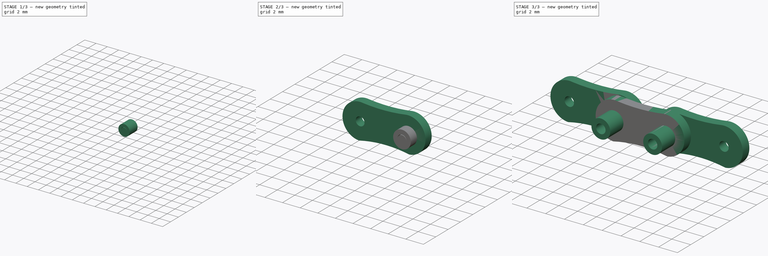
[diagram: build sequence overview — one tinted view per stage of 3, left to right]
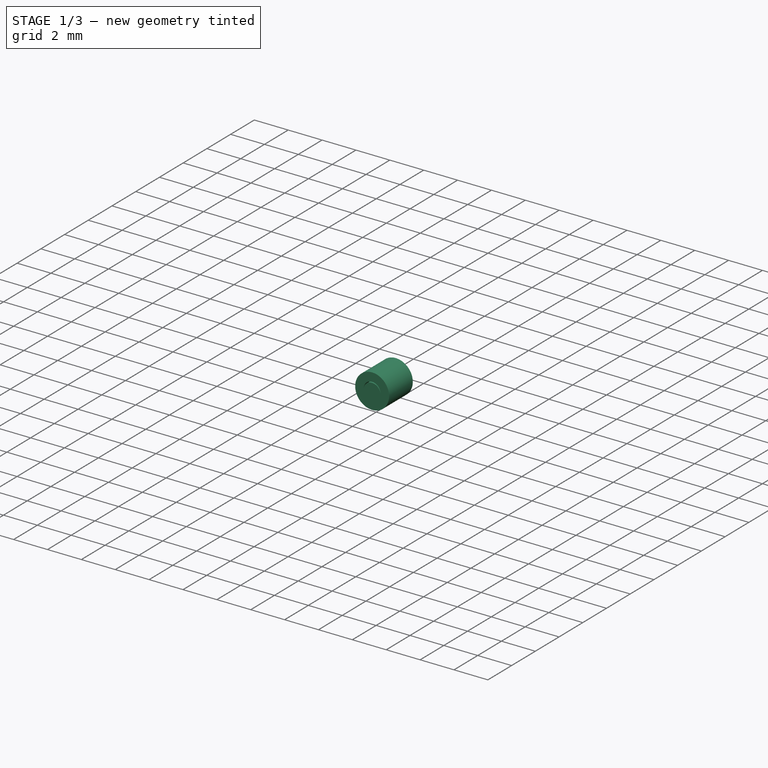
[diagram: stage 1 of 3 — iso view after this stage's code; geometry added in this stage tinted green]
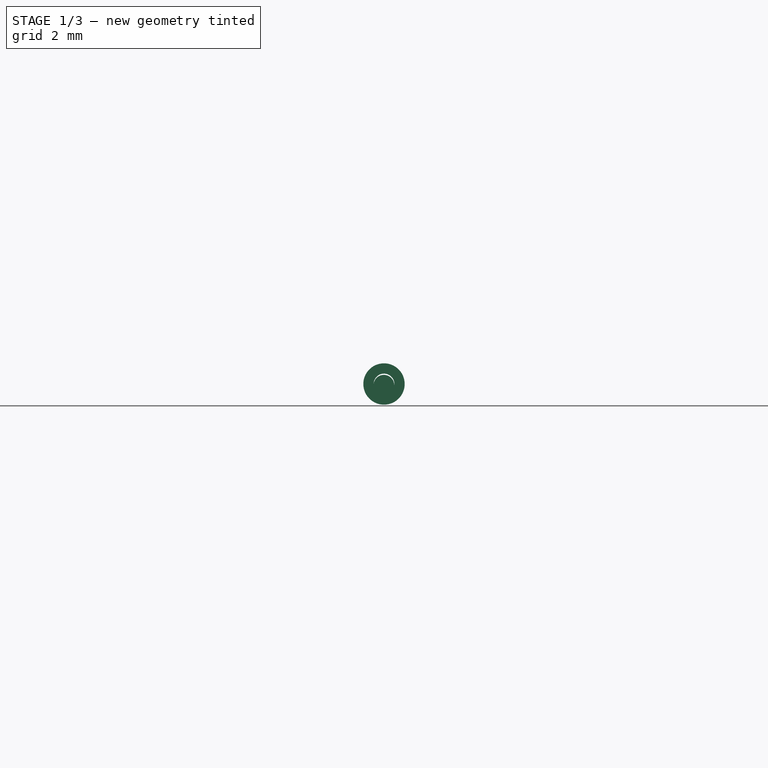
[diagram: stage 1 of 3 — front view after this stage's code; geometry added in this stage tinted green]
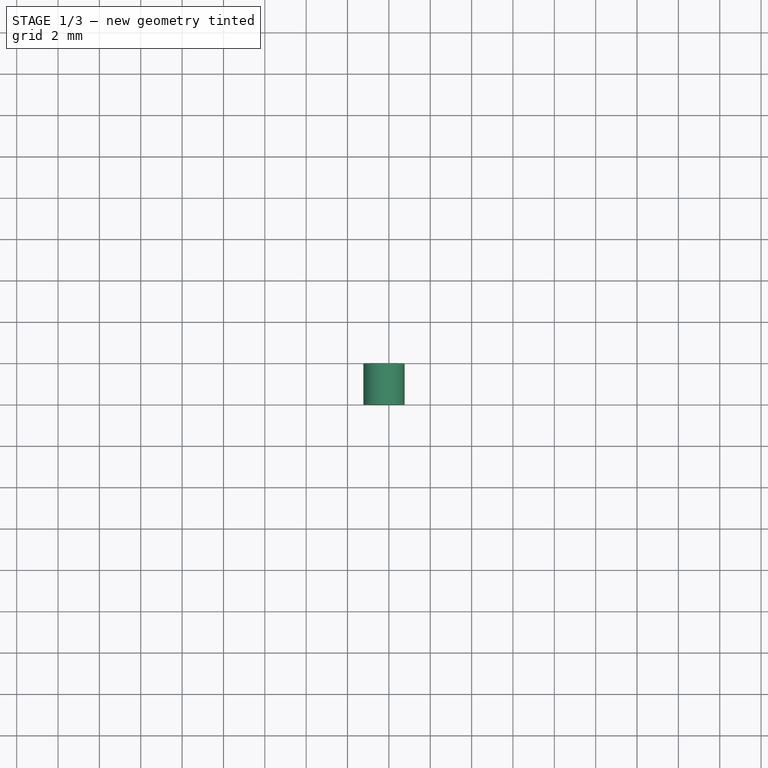
[diagram: stage 1 of 3 — top view after this stage's code; geometry added in this stage tinted green]
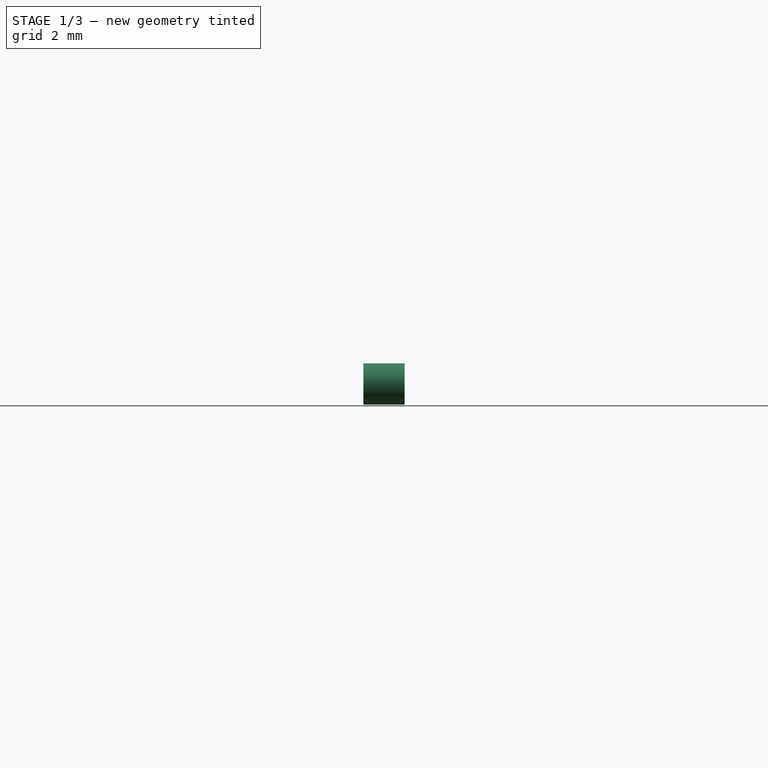
[diagram: stage 1 of 3 — right view after this stage's code; geometry added in this stage tinted green]
FCSTD DOCUMENT  (FreeCAD 0.21R33771 (Git))
Label: Sprocket Chain Design Fail
License: All rights reserved
LicenseURL: http://en.wikipedia.org/wiki/All_rights_reserved
objects: Sketcher::SketchObject×9, PartDesign::Body×8, PartDesign::Pad×7, PartDesign::Boolean×1, App::DocumentObjectGroup×1
note: 32 computed .brp shape members not serialized (recipe doc carries the construction recipe); baked Part::Feature solids carry a one-line shape summary decoded from their .brp

FEATURE [PartDesign::Body] Body003
  Group = -> [Sketch005,Pad003]
  Origin = -> Origin003
  Placement = pos=(0.5,-1,0) rot=(0,0,1;0rad)
  Tip = -> Pad003
FEATURE [Sketcher::SketchObject] Sketch006
  FullyConstrained = false
  MapMode = 5
  Placement = pos=(0,0,0) rot=(1,0,0;1.5708rad)
  Support = -> [XZ_Plane004]
  sketch-geometry (1):
    g0: Circle CenterX=25.7577 CenterY=-14.9411 CenterZ=0 NormalX=0 NormalY=0 NormalZ=1 AngleXU=0 Radius=0.5
  constraints (1):
    c: Diameter(g0) = 1
FEATURE [PartDesign::Pad] Pad004
  Direction = (0,-1,2e-16)
  Length = 2
  Length2 = 10
  Placement = pos=(0,0,0) rot=(1,0,0;1.5708rad)
  Profile = -> Sketch006
  ReferenceAxis = -> Sketch006 [N_Axis]
  Type = 0
FEATURE [PartDesign::Body] Body004
  Group = -> [Sketch006,Pad004]
  Origin = -> Origin004
  Placement = pos=(0.5,1,0) rot=(0,0,1;0rad)
  Tip = -> Pad004
FEATURE [Sketcher::SketchObject] Sketch007
  FullyConstrained = false
  MapMode = 5
  Placement = pos=(0,0,0) rot=(1,0,0;1.5708rad)
  Support = -> [XZ_Plane005]
  sketch-geometry (2):
    g0: Circle CenterX=25.7634 CenterY=-14.882 CenterZ=0 NormalX=0 NormalY=0 NormalZ=1 AngleXU=0 Radius=0.5
    g1: Circle CenterX=25.7634 CenterY=-14.882 CenterZ=0 NormalX=0 NormalY=0 NormalZ=1 AngleXU=0 Radius=1
  constraints (3):
    c: Diameter(g0) = 1
    c: Coincident(g1,g0)
    c: Diameter(g1) = 2
FEATURE [PartDesign::Pad] Pad005
  Direction = (0,-1,2e-16)
  Length = 2
  Length2 = 10
  Placement = pos=(0,0,0) rot=(1,0,0;1.5708rad)
  Profile = -> Sketch007
  ReferenceAxis = -> Sketch007 [N_Axis]
  Type = 0
FEATURE [PartDesign::Body] Body005
  Group = -> [Sketch007,Pad005]
  Origin = -> Origin005
  Placement = pos=(-5,-1,0) rot=(0,0,1;0rad)
  Tip = -> Pad005
FEATURE [Sketcher::SketchObject] Sketch008
  FullyConstrained = false
  MapMode = 5
  Placement = pos=(0,0,0) rot=(1,0,0;1.5708rad)
  Support = -> [XZ_Plane006]
  sketch-geometry (1):
    g0: Circle CenterX=25.7577 CenterY=-14.9411 CenterZ=0 NormalX=0 NormalY=0 NormalZ=1 AngleXU=0 Radius=0.5
  constraints (1):
    c: Diameter(g0) = 1
FEATURE [PartDesign::Pad] Pad006
  Direction = (0,-1,2e-16)
  Length = 2
  Length2 = 10
  Placement = pos=(0,0,0) rot=(1,0,0;1.5708rad)
  Profile = -> Sketch008
  ReferenceAxis = -> Sketch008 [N_Axis]
  Type = 0
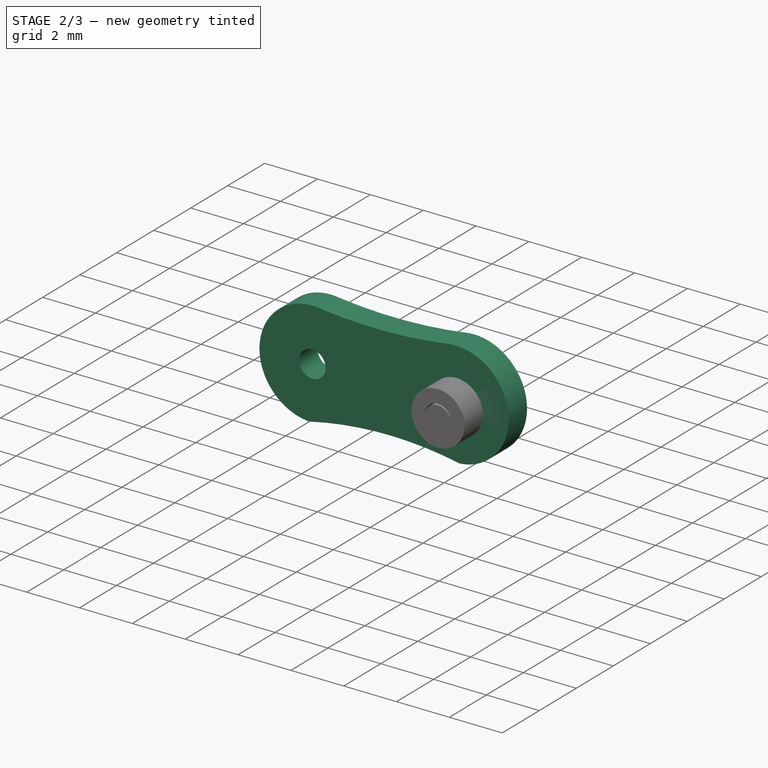
[diagram: stage 2 of 3 — iso view after this stage's code; geometry added in this stage tinted green]
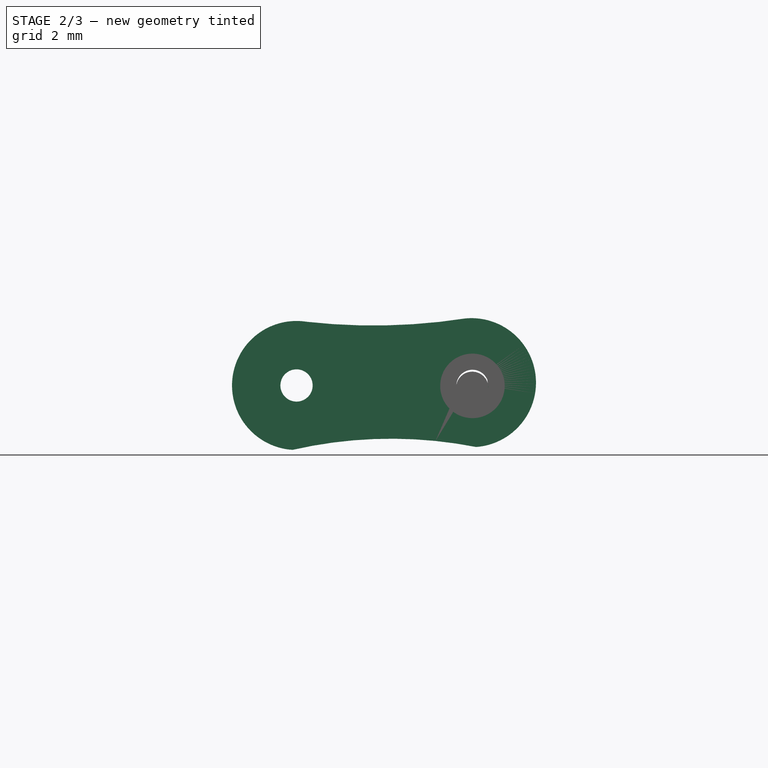
[diagram: stage 2 of 3 — front view after this stage's code; geometry added in this stage tinted green]
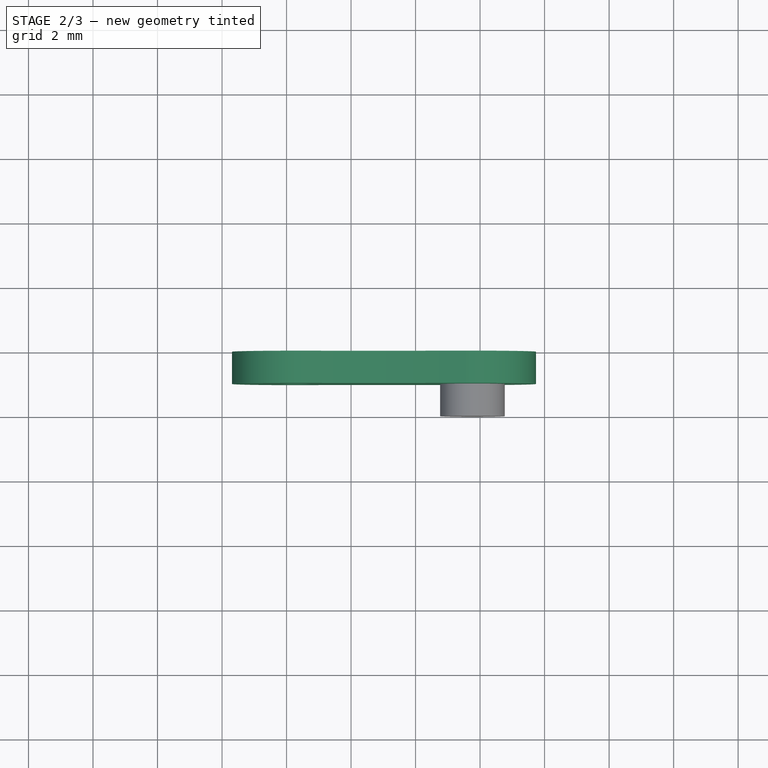
[diagram: stage 2 of 3 — top view after this stage's code; geometry added in this stage tinted green]
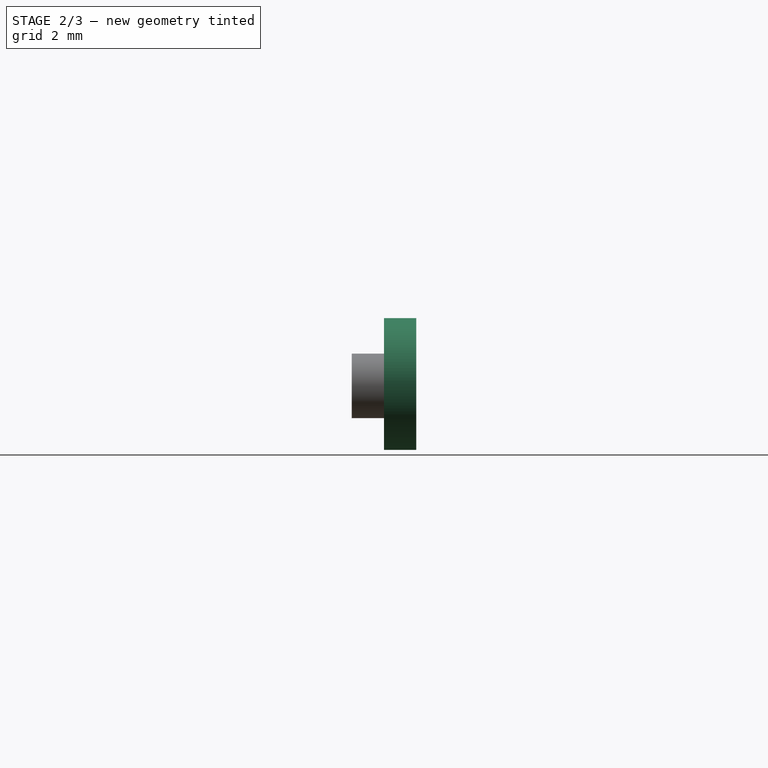
[diagram: stage 2 of 3 — right view after this stage's code; geometry added in this stage tinted green]
FEATURE [PartDesign::Body] Body001
  Group = -> [Sketch002,Pad001]
  Origin = -> Origin001
  Placement = pos=(6,1,0) rot=(0,0,1;0rad)
  Tip = -> Pad001
FEATURE [Sketcher::SketchObject] Sketch003
  FullyConstrained = false
  MapMode = 5
  Placement = pos=(0,0,0) rot=(1,0,0;1.5708rad)
  Support = -> [XZ_Plane002]
  sketch-geometry (8):
    g0: ArcOfCircle CenterX=20.3094 CenterY=-14.8692 CenterZ=0 NormalX=0 NormalY=0 NormalZ=1 AngleXU=0 Radius=2 StartAngle=1.40786 EndAngle=4.65169
    g1: ArcOfCircle CenterX=25.7335 CenterY=-14.7818 CenterZ=0 NormalX=0 NormalY=0 NormalZ=1 AngleXU=0 Radius=2 StartAngle=4.78477 EndAngle=7.94506
    g2: ArcOfCircle CenterX=22.6971 CenterY=5.58799 CenterZ=0 NormalX=0 NormalY=0 NormalZ=1 AngleXU=0 Radius=18.5984 StartAngle=4.60122 EndAngle=4.86648
    g3: ArcOfCircle CenterX=23.2418 CenterY=-30.1791 CenterZ=0 NormalX=0 NormalY=0 NormalZ=1 AngleXU=0 Radius=13.6593 StartAngle=1.37657 EndAngle=1.79627
    g4: Circle CenterX=20.3094 CenterY=-14.8692 CenterZ=0 NormalX=0 NormalY=0 NormalZ=1 AngleXU=0 Radius=0.5
    g5: Circle CenterX=25.7335 CenterY=-14.7818 CenterZ=0 NormalX=0 NormalY=0 NormalZ=1 AngleXU=0 Radius=0.5
    g6: GeomPoint X=20.3094 Y=-14.8692 Z=0
    g7: GeomPoint X=20.3094 Y=-14.8692 Z=0
  constraints (12):
    c: Diameter(g0) = 4
    c: Diameter(g1) = 4
    c: Coincident(g0,g2)
    c: Coincident(g0,g3)
    c: Coincident(g1,g3)
    c: Coincident(g1,g2)
    c: Coincident(g4,g0)
    c: Coincident(g5,g1)
    c: Diameter(g4) = 1
    c: Diameter(g5) = 1
    c: Coincident(g6,g0)
    c: Coincident(g7,g0)
FEATURE [PartDesign::Pad] Pad002
  Direction = (0,-1,-2e-16)
  Length = 1
  Length2 = 10
  Placement = pos=(0,0,0) rot=(1,0,0;1.5708rad)
  Profile = -> Sketch003
  ReferenceAxis = -> Sketch003 [N_Axis]
  Type = 0
FEATURE [PartDesign::Body] Body002
  Group = -> [Sketch003,Pad002]
  Origin = -> Origin002
  Placement = pos=(-5,1,0) rot=(0,0,1;0rad)
  Tip = -> Pad002
FEATURE [Sketcher::SketchObject] Sketch004
  FullyConstrained = true
  MapMode = 5
  Placement = pos=(0,0,0) rot=(1,0,0;1.5708rad)
  Support = -> [XZ_Plane]
FEATURE [PartDesign::Body] Body
  Group = -> [Sketch001,Pad,Sketch004]
  Origin = -> Origin
  Placement = pos=(0.5,0,0) rot=(0,0,1;0rad)
  Tip = -> Pad
FEATURE [Sketcher::SketchObject] Sketch005
  FullyConstrained = false
  MapMode = 5
  Placement = pos=(0,0,0) rot=(1,0,0;1.5708rad)
  Support = -> [XZ_Plane003]
  sketch-geometry (2):
    g0: Circle CenterX=25.7634 CenterY=-14.882 CenterZ=0 NormalX=0 NormalY=0 NormalZ=1 AngleXU=0 Radius=0.5
    g1: Circle CenterX=25.7634 CenterY=-14.882 CenterZ=0 NormalX=0 NormalY=0 NormalZ=1 AngleXU=0 Radius=1
  constraints (3):
    c: Diameter(g0) = 1
    c: Coincident(g1,g0)
    c: Diameter(g1) = 2
FEATURE [PartDesign::Pad] Pad003
  Direction = (0,-1,2e-16)
  Length = 2
  Length2 = 10
  Placement = pos=(0,0,0) rot=(1,0,0;1.5708rad)
  Profile = -> Sketch005
  ReferenceAxis = -> Sketch005 [N_Axis]
  Type = 0
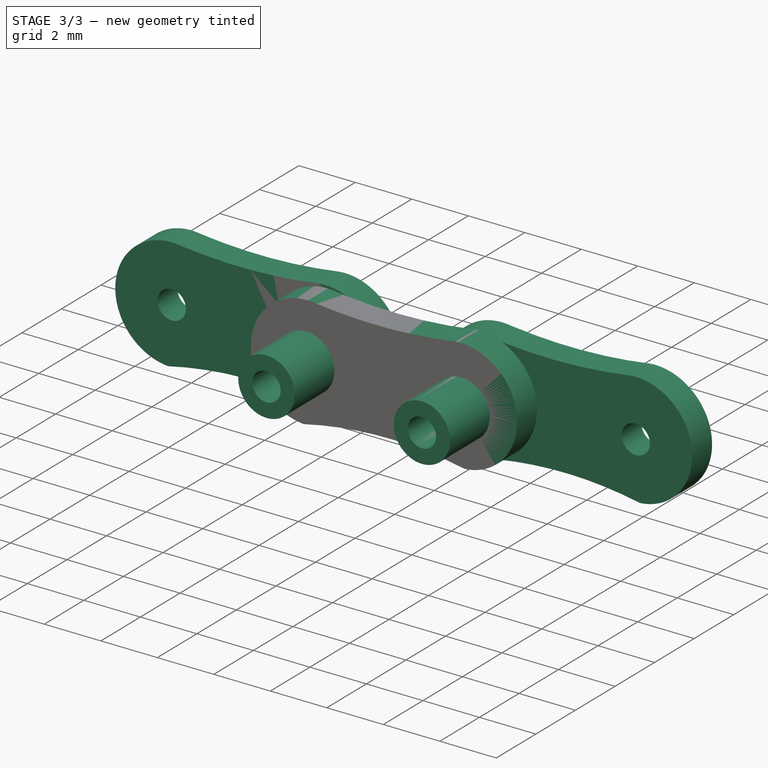
[diagram: stage 3 of 3 — iso view after this stage's code; geometry added in this stage tinted green]
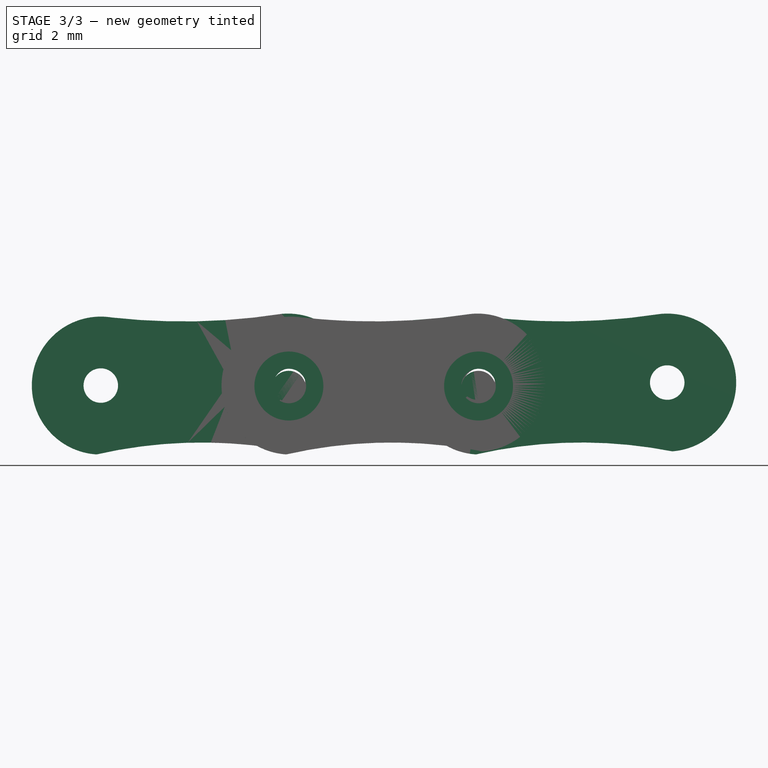
[diagram: stage 3 of 3 — front view after this stage's code; geometry added in this stage tinted green]
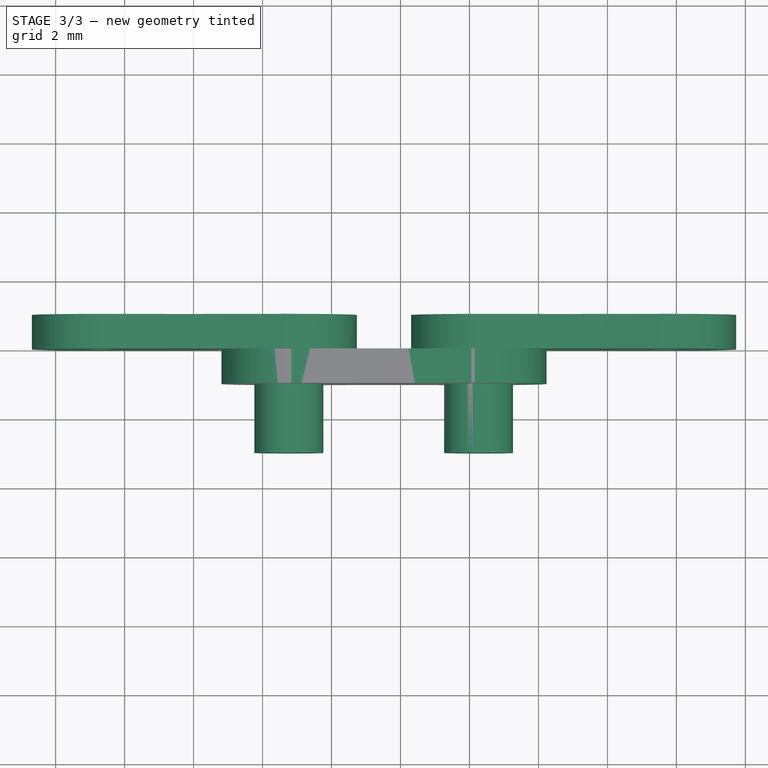
[diagram: stage 3 of 3 — top view after this stage's code; geometry added in this stage tinted green]
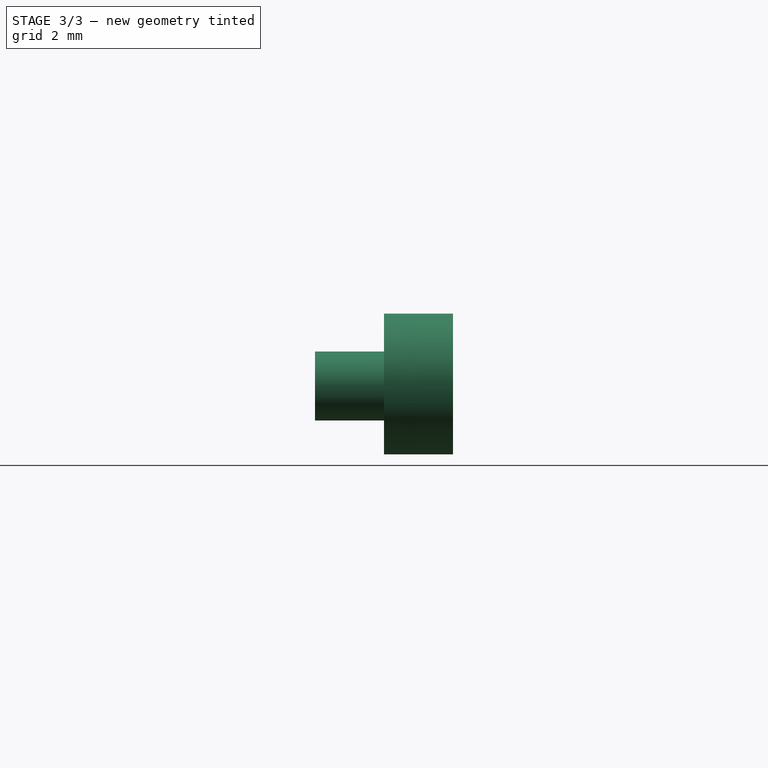
[diagram: stage 3 of 3 — right view after this stage's code; geometry added in this stage tinted green]
FEATURE [Sketcher::SketchObject] Sketch
  FullyConstrained = false
  MapMode = 5
  Placement = pos=(0,0,0) rot=(1,0,0;1.5708rad)
  Support = -> [XZ_Plane]
  sketch-geometry (4):
    g0: LineSegment StartX=-32.5714 StartY=-22.6857 StartZ=0 EndX=36.2286 EndY=-27.6 EndZ=0
    g1: ArcOfCircle CenterX=37.334 CenterY=-12.1246 CenterZ=0 NormalX=0 NormalY=0 NormalZ=1 AngleXU=0 Radius=15.5148 StartAngle=4.64108 EndAngle=7.90315
    g2: LineSegment StartX=36.5714 StartY=3.37144 StartZ=0 EndX=-32.9278 EndY=-0.0484328 EndZ=0
    g3: ArcOfCircle CenterX=-32.3711 CenterY=-11.3611 CenterZ=0 NormalX=0 NormalY=0 NormalZ=1 AngleXU=0 Radius=11.3264 StartAngle=1.61996 EndAngle=4.6947
  constraints (4):
    c: Tangent(g0,g1) = -1.5708
    c: Tangent(g1,g2) = -1.5708
    c: Tangent(g2,g3) = -1.5708
    c: Coincident(g3,g0)
FEATURE [Sketcher::SketchObject] Sketch001
  FullyConstrained = false
  MapMode = 5
  Placement = pos=(0,0,0) rot=(1,0,0;1.5708rad)
  Support = -> [XZ_Plane]
  sketch-geometry (6):
    g0: ArcOfCircle CenterX=20.3094 CenterY=-14.8692 CenterZ=0 NormalX=0 NormalY=0 NormalZ=1 AngleXU=0 Radius=2 StartAngle=1.40786 EndAngle=4.65169
    g1: ArcOfCircle CenterX=25.7335 CenterY=-14.7818 CenterZ=0 NormalX=0 NormalY=0 NormalZ=1 AngleXU=0 Radius=2 StartAngle=4.78477 EndAngle=7.94506
    g2: ArcOfCircle CenterX=22.6971 CenterY=5.58799 CenterZ=0 NormalX=0 NormalY=0 NormalZ=1 AngleXU=0 Radius=18.5984 StartAngle=4.60122 EndAngle=4.86648
    g3: ArcOfCircle CenterX=23.2418 CenterY=-30.1791 CenterZ=0 NormalX=0 NormalY=0 NormalZ=1 AngleXU=0 Radius=13.6593 StartAngle=1.37657 EndAngle=1.79627
    g4: Circle CenterX=20.3094 CenterY=-14.8692 CenterZ=0 NormalX=0 NormalY=0 NormalZ=1 AngleXU=0 Radius=0.5
    g5: Circle CenterX=25.7335 CenterY=-14.7818 CenterZ=0 NormalX=0 NormalY=0 NormalZ=1 AngleXU=0 Radius=0.5
  constraints (10):
    c: Diameter(g0) = 4
    c: Diameter(g1) = 4
    c: Coincident(g0,g2)
    c: Coincident(g0,g3)
    c: Coincident(g1,g3)
    c: Coincident(g1,g2)
    c: Coincident(g4,g0)
    c: Coincident(g5,g1)
    c: Diameter(g4) = 1
    c: Diameter(g5) = 1
FEATURE [PartDesign::Pad] Pad
  Direction = (0,-1,2e-16)
  Length = 1
  Length2 = 10
  Placement = pos=(0,0,0) rot=(1,0,0;1.5708rad)
  Profile = -> Sketch001
  ReferenceAxis = -> Sketch001 [N_Axis]
  Type = 0
FEATURE [Sketcher::SketchObject] Sketch002
  FullyConstrained = false
  MapMode = 5
  Placement = pos=(0,0,0) rot=(1,0,0;1.5708rad)
  Support = -> [XZ_Plane001]
  sketch-geometry (8):
    g0: ArcOfCircle CenterX=20.3094 CenterY=-14.8692 CenterZ=0 NormalX=0 NormalY=0 NormalZ=1 AngleXU=0 Radius=2 StartAngle=1.40786 EndAngle=4.65169
    g1: ArcOfCircle CenterX=25.7335 CenterY=-14.7818 CenterZ=0 NormalX=0 NormalY=0 NormalZ=1 AngleXU=0 Radius=2 StartAngle=4.78477 EndAngle=7.94506
    g2: ArcOfCircle CenterX=22.6971 CenterY=5.58799 CenterZ=0 NormalX=0 NormalY=0 NormalZ=1 AngleXU=0 Radius=18.5984 StartAngle=4.60122 EndAngle=4.86648
    g3: ArcOfCircle CenterX=23.2418 CenterY=-30.1791 CenterZ=0 NormalX=0 NormalY=0 NormalZ=1 AngleXU=0 Radius=13.6593 StartAngle=1.37657 EndAngle=1.79627
    g4: Circle CenterX=20.3094 CenterY=-14.8692 CenterZ=0 NormalX=0 NormalY=0 NormalZ=1 AngleXU=0 Radius=0.5
    g5: Circle CenterX=25.7335 CenterY=-14.7818 CenterZ=0 NormalX=0 NormalY=0 NormalZ=1 AngleXU=0 Radius=0.5
    g6: GeomPoint X=20.3094 Y=-14.8692 Z=0
    g7: GeomPoint X=20.3094 Y=-14.8692 Z=0
  constraints (12):
    c: Diameter(g0) = 4
    c: Diameter(g1) = 4
    c: Coincident(g0,g2)
    c: Coincident(g0,g3)
    c: Coincident(g1,g3)
    c: Coincident(g1,g2)
    c: Coincident(g4,g0)
    c: Coincident(g5,g1)
    c: Diameter(g4) = 1
    c: Diameter(g5) = 1
    c: Coincident(g6,g0)
    c: Coincident(g7,g0)
FEATURE [PartDesign::Pad] Pad001
  Direction = (0,-1,-2e-16)
  Length = 1
  Length2 = 10
  Placement = pos=(0,0,0) rot=(1,0,0;1.5708rad)
  Profile = -> Sketch002
  ReferenceAxis = -> Sketch002 [N_Axis]
  Type = 0
FEATURE [PartDesign::Body] Body006
  Group = -> [Sketch008,Pad006]
  Origin = -> Origin006
  Placement = pos=(-5,1,0) rot=(0,0,1;0rad)
  Tip = -> Pad006
FEATURE [PartDesign::Boolean] Boolean
  Group = -> [Body006,Body001,Body002,Body003,Body004,Body005,Body]
  Type = 0
FEATURE [PartDesign::Body] Body007
  Group = -> [Boolean]
  Origin = -> Origin007
  Placement = pos=(0,3,0) rot=(0,0,1;0rad)
  Tip = -> Boolean
FEATURE [App::DocumentObjectGroup] Group  label="Fusion Test"
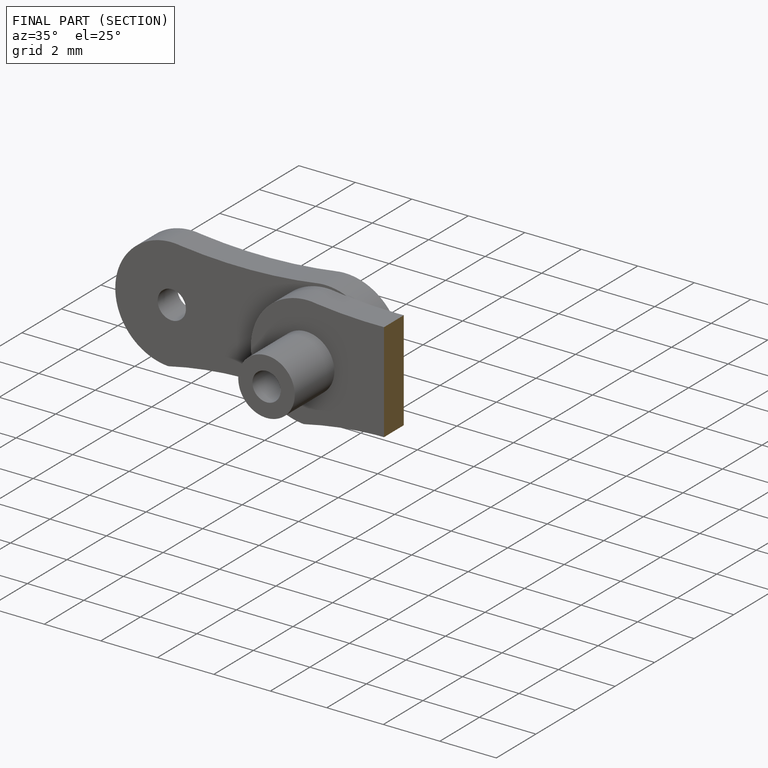
[diagram: finished part — half-section view (interior)]
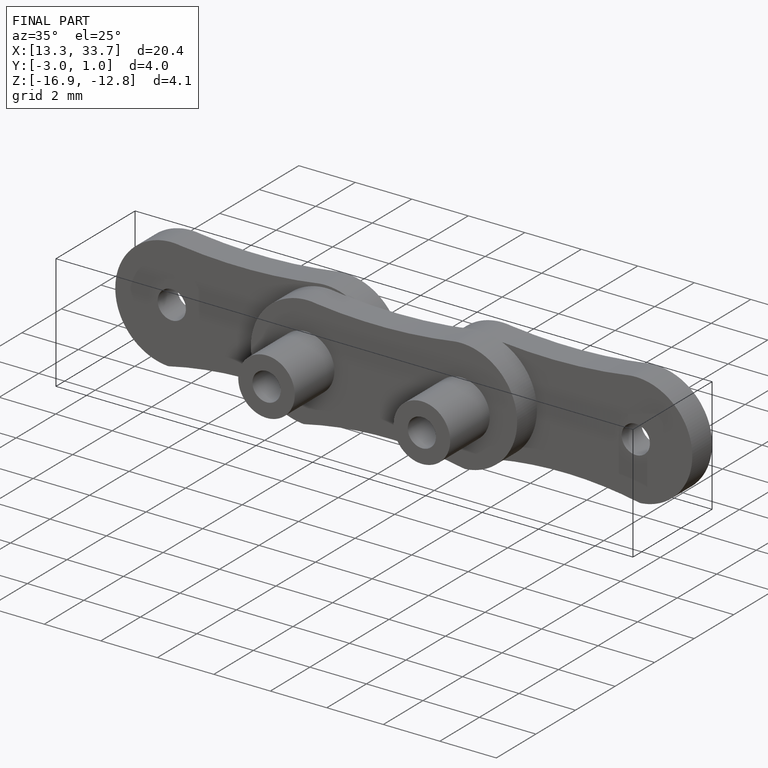
[diagram: finished part — iso view with bounding-box wireframe]
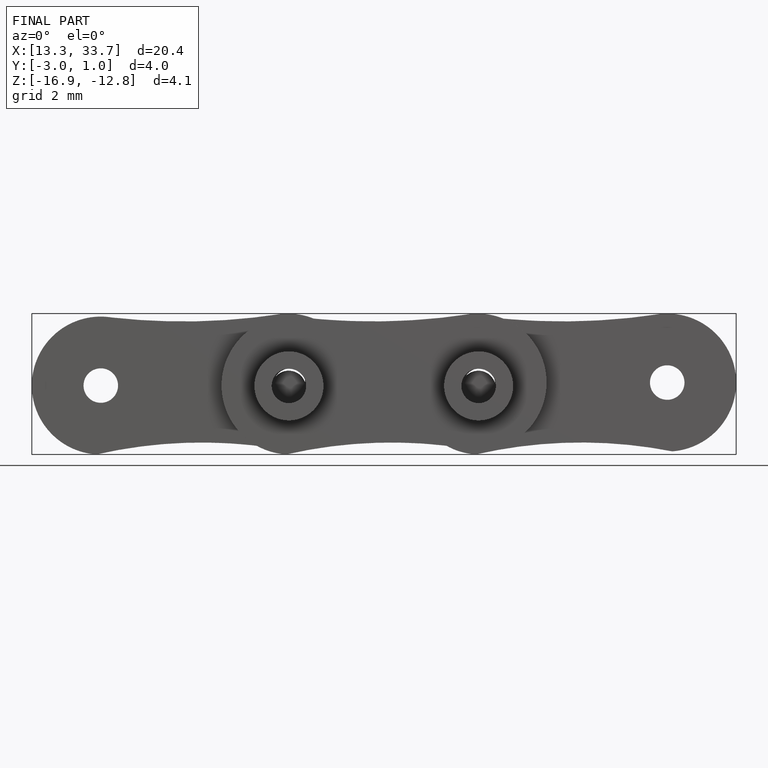
[diagram: finished part — front view with bounding-box wireframe]
